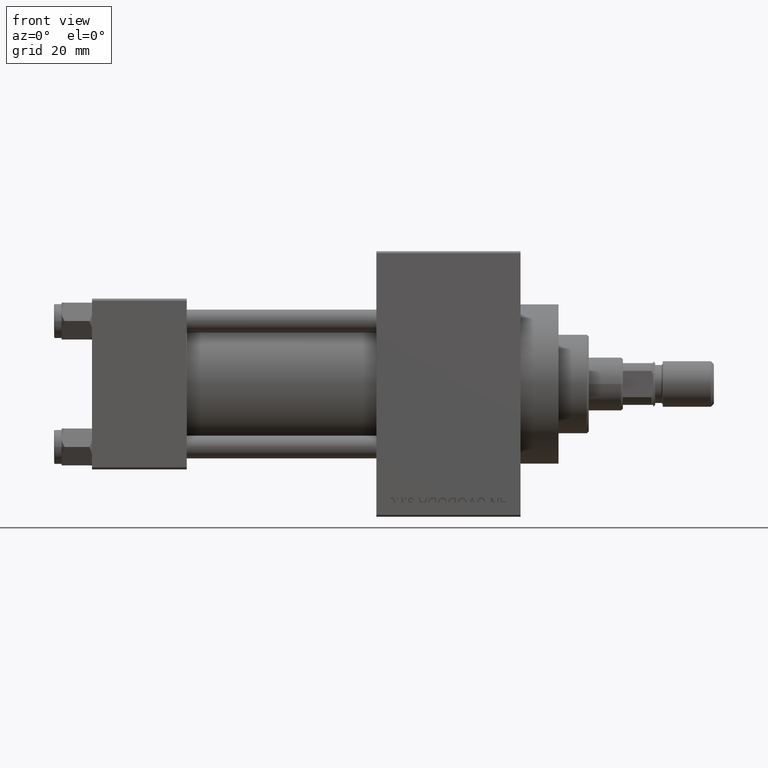
[diagram: clean part render]
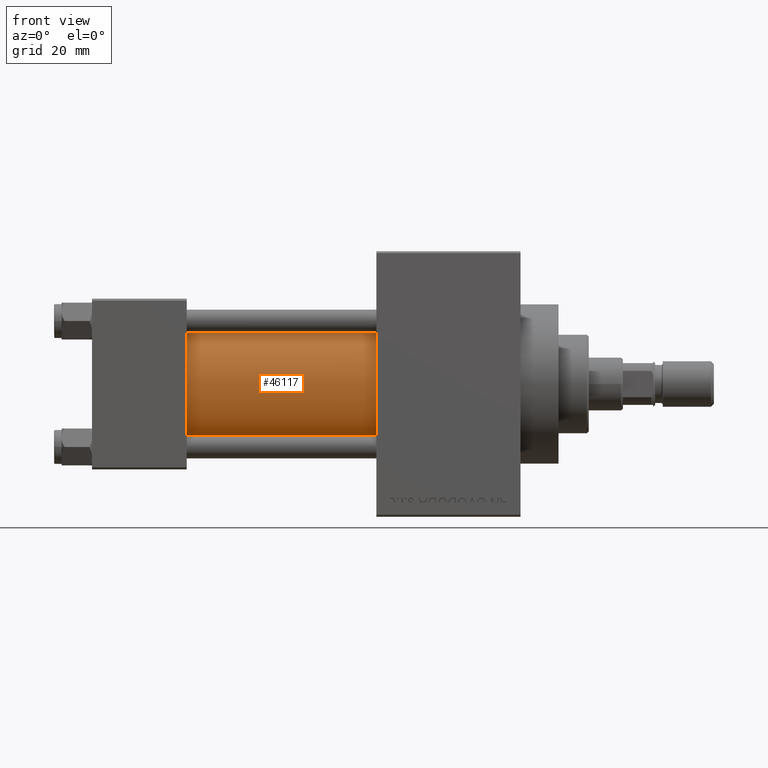
[diagram: same view with one face highlighted and labeled with its STEP entity id]
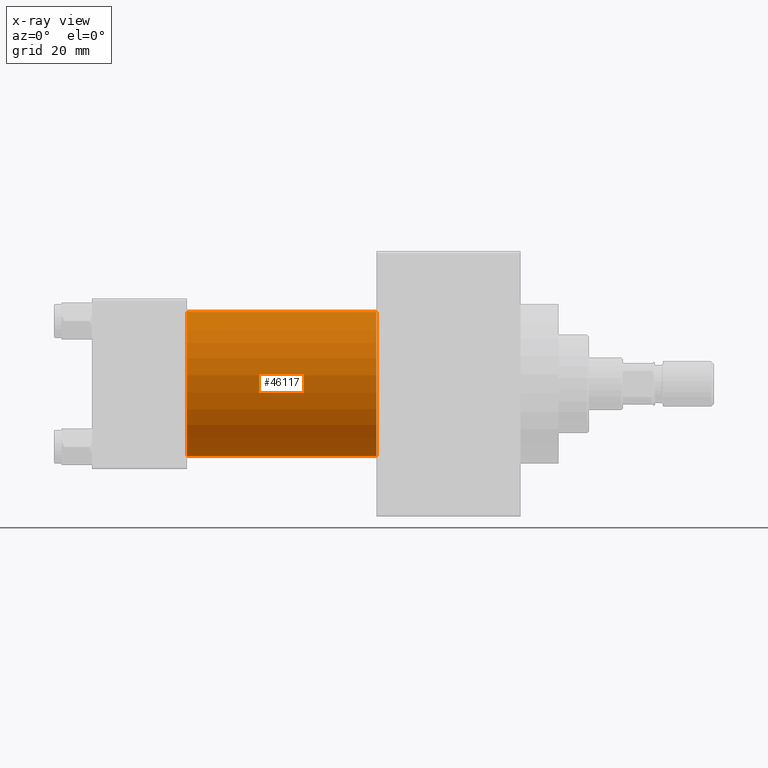
[diagram: x-ray of the same camera — body ghosted, the highlighted face saturated]
A machine part, front view. The second image highlights one B-rep face of the part: STEP entity #46117.
The next image is the same camera in x-ray: the body ghosted, the highlighted face saturated — about 0% of this face is hidden behind the body in this view.
In plain terms, the highlighted cylindrical surface (partial cylindrical patch) has radius 19 mm, axis along (-1, -0, -0).
Its self-contained STEP definition (entity closure, byte-faithful):
#2205 = VERTEX_POINT ( 'NONE', #9558 ) ;
#2721 = CARTESIAN_POINT ( 'NONE',  ( 75.00000000000001421, -2.602085213965210642E-15, 19.00000000000000000 ) ) ;
#5127 = VECTOR ( 'NONE', #9809, 1000.000000000000000 ) ;
#8862 = ORIENTED_EDGE ( 'NONE', *, *, #22523, .T. ) ;
#9186 = DIRECTION ( 'NONE',  ( 0.000000000000000000, 0.000000000000000000, 1.000000000000000000 ) ) ;
#9558 = CARTESIAN_POINT ( 'NONE',  ( 25.00000000000000000, -2.752562955852396712E-16, -19.00000000000000000 ) ) ;
#9616 = DIRECTION ( 'NONE',  ( -1.000000000000000000, -0.000000000000000000, -0.000000000000000000 ) ) ;
#9629 = DIRECTION ( 'NONE',  ( 0.000000000000000000, 0.000000000000000000, -1.000000000000000000 ) ) ;
#9662 = VERTEX_POINT ( 'NONE', #16458 ) ;
#9809 = DIRECTION ( 'NONE',  ( -1.000000000000000000, -0.000000000000000000, -0.000000000000000000 ) ) ;
#10175 = DIRECTION ( 'NONE',  ( 1.000000000000000000, -0.000000000000000000, 0.000000000000000000 ) ) ;
#12451 = AXIS2_PLACEMENT_3D ( 'NONE', #20242, #42625, #9629 ) ;
#12675 = AXIS2_PLACEMENT_3D ( 'NONE', #47365, #16896, #9186 ) ;
#13195 = LINE ( 'NONE', #31971, #5127 ) ;
#13273 = ORIENTED_EDGE ( 'NONE', *, *, #19090, .T. ) ;
#14537 = EDGE_CURVE ( 'NONE', #17177, #2205, #13195, .T. ) ;
#14909 = CARTESIAN_POINT ( 'NONE',  ( 75.00000000000001421, -2.752562955852396712E-16, -19.00000000000000000 ) ) ;
#16096 = ORIENTED_EDGE ( 'NONE', *, *, #31344, .F. ) ;
#16458 = CARTESIAN_POINT ( 'NONE',  ( 25.00000000000000000, -2.602085213965210642E-15, 19.00000000000000000 ) ) ;
#16896 = DIRECTION ( 'NONE',  ( -1.000000000000000000, -0.000000000000000000, -0.000000000000000000 ) ) ;
#17177 = VERTEX_POINT ( 'NONE', #14909 ) ;
#17889 = DIRECTION ( 'NONE',  ( 0.000000000000000000, 0.000000000000000000, 1.000000000000000000 ) ) ;
#19090 = EDGE_CURVE ( 'NONE', #9662, #2205, #29096, .T. ) ;
#20170 = CIRCLE ( 'NONE', #12451, 19.00000000000000000 ) ;
#20242 = CARTESIAN_POINT ( 'NONE',  ( 75.00000000000001421, -2.602085213965210642E-15, 0.000000000000000000 ) ) ;
#20752 = VECTOR ( 'NONE', #9616, 1000.000000000000000 ) ;
#21747 = CARTESIAN_POINT ( 'NONE',  ( 25.00000000000000000, -2.602085213965210642E-15, 0.000000000000000000 ) ) ;
#22523 = EDGE_CURVE ( 'NONE', #41118, #9662, #42142, .T. ) ;
#22856 = ORIENTED_EDGE ( 'NONE', *, *, #14537, .F. ) ;
#26028 = AXIS2_PLACEMENT_3D ( 'NONE', #21747, #10175, #17889 ) ;
#27922 = CARTESIAN_POINT ( 'NONE',  ( 75.00000000000001421, -2.602085213965210642E-15, 19.00000000000000000 ) ) ;
#29096 = CIRCLE ( 'NONE', #26028, 19.00000000000000000 ) ;
#31344 = EDGE_CURVE ( 'NONE', #41118, #17177, #20170, .T. ) ;
#31971 = CARTESIAN_POINT ( 'NONE',  ( 75.00000000000001421, -2.752562955852396712E-16, -19.00000000000000000 ) ) ;
#32941 = CYLINDRICAL_SURFACE ( 'NONE', #12675, 19.00000000000000000 ) ;
#38508 = EDGE_LOOP ( 'NONE', ( #22856, #16096, #8862, #13273 ) ) ;
#41118 = VERTEX_POINT ( 'NONE', #2721 ) ;
#42142 = LINE ( 'NONE', #27922, #20752 ) ;
#42625 = DIRECTION ( 'NONE',  ( 1.000000000000000000, 0.000000000000000000, 0.000000000000000000 ) ) ;
#43772 = FACE_OUTER_BOUND ( 'NONE', #38508, .T. ) ;
#46117 = ADVANCED_FACE ( 'NONE', ( #43772 ), #32941, .T. ) ;
#47365 = CARTESIAN_POINT ( 'NONE',  ( 75.00000000000001421, -2.602085213965210642E-15, 0.000000000000000000 ) ) ;